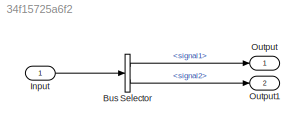
MODEL slx_34f15725a6f2
KIND model
CONFIG AbsTol = auto
CONFIG EnableMultiTasking = off
CONFIG FixedStep = auto
CONFIG MaxStep = auto
CONFIG MinStep = auto
CONFIG RelTol = 1e-3
CONFIG SampleTimeConstraint = Unconstrained
CONFIG Solver = VariableStepAuto
CONFIG SolverName = VariableStepAuto
CONFIG StartTime = 0.0
CONFIG StopTime = 10.0
BLOCK [BusSelector] Bus Selector
  OutputAsBus = off
  OutputSignals = signal1,signal2
  Ports = [1, 2]
BLOCK [Inport] Input
  IconDisplay = Port number
  OutDataTypeStr = Bus: GrpOfSignals
BLOCK [Outport] Output
  IconDisplay = Port number
BLOCK [Outport] Output1
  IconDisplay = Port number
  Port = 2
LINE Bus Selector:1 -> Output:1
LINE Bus Selector:2 -> Output1:1
LINE Input:1 -> Bus Selector:1
